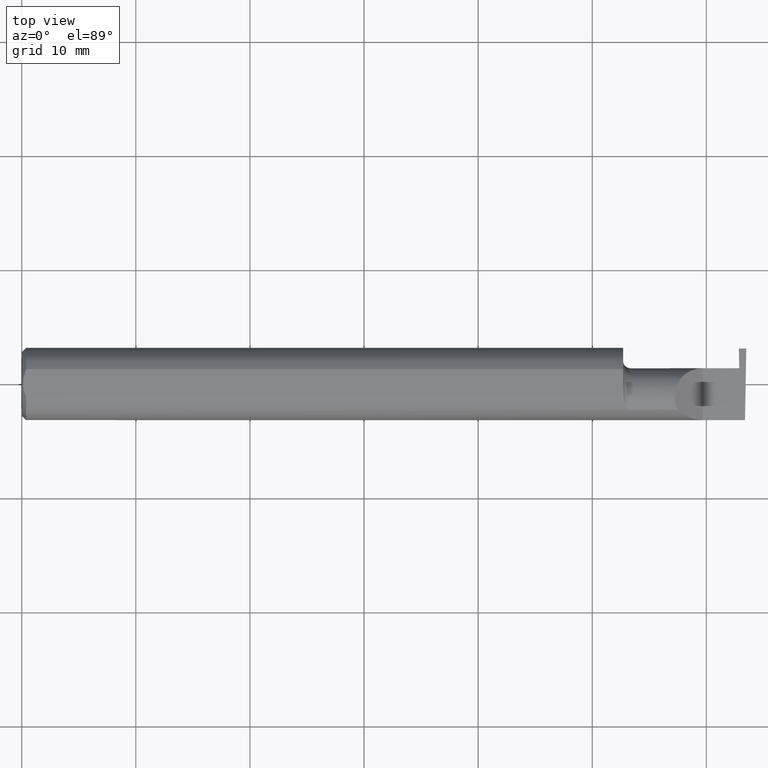
[diagram: clean part render]
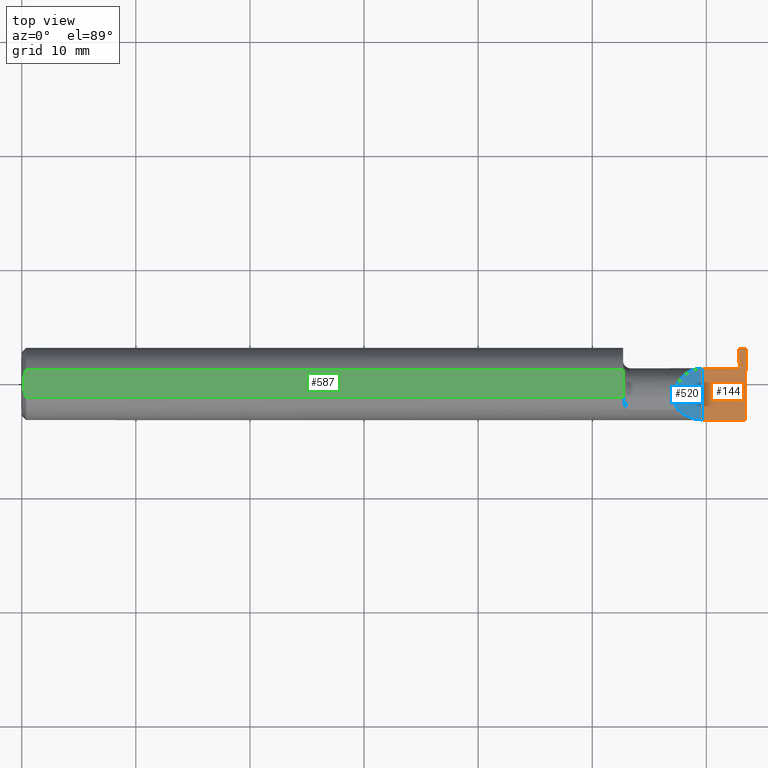
[diagram: same view with three faces highlighted in distinct colors, each labeled with its STEP entity id]
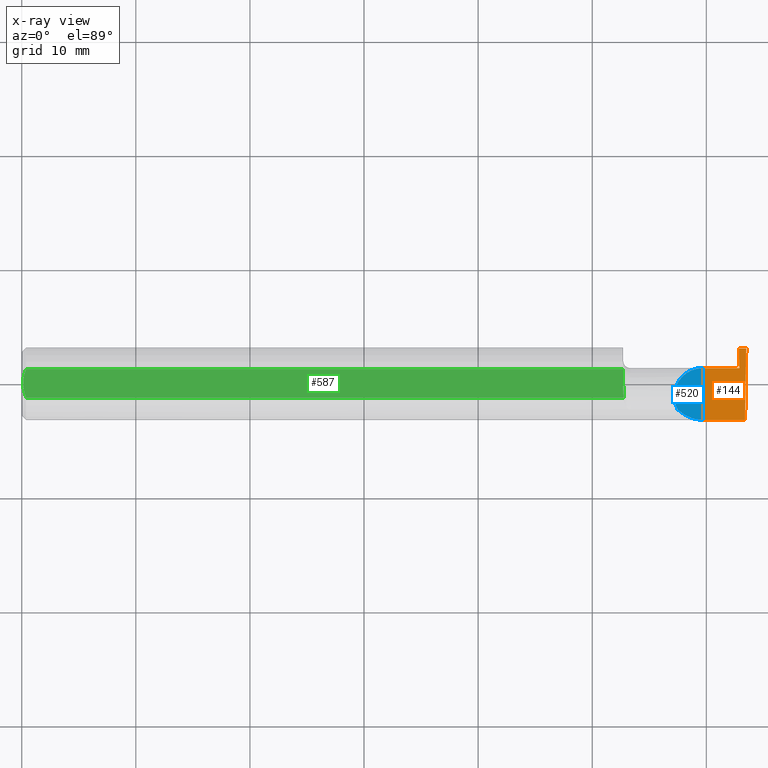
[diagram: x-ray of the same camera — body ghosted, the three highlighted faces saturated]
A machine part, top view with three faces highlighted in distinct colors.
The next image is the same camera in x-ray (body ghosted, the three faces saturated) — at least one of them is partly hidden behind the body in this view.
Their STEP definitions:

[orange] entity #144 — the highlighted planar face has unit normal (-0, 0, -1).
#3 = CARTESIAN_POINT ( 'NONE',  ( 2.500000000000000000, 0.05414999999999998981, -4.018029980387586904E-33 ) ) ;
#9 = EDGE_CURVE ( 'NONE', #714, #211, #152, .T. ) ;
#21 = CARTESIAN_POINT ( 'NONE',  ( 2.075000000000000178, 0.05414999999999998981, 5.204748896376247001E-17 ) ) ;
#61 = DIRECTION ( 'NONE',  ( -0.000000000000000000, 1.000000000000000000, -0.000000000000000000 ) ) ;
#64 = DIRECTION ( 'NONE',  ( -1.000000000000000000, 1.290958279323718807E-16, 1.224646799147352221E-16 ) ) ;
#74 = ORIENTED_EDGE ( 'NONE', *, *, #249, .F. ) ;
#85 = VECTOR ( 'NONE', #350, 39.37007874015747433 ) ;
#93 = CARTESIAN_POINT ( 'NONE',  ( 2.494380489674781209, -0.1999019447116721915, 6.881915332554697616E-19 ) ) ;
#97 = CARTESIAN_POINT ( 'NONE',  ( 3.749399456654637998E-32, -0.1248500000000000026, 3.061616997868380676E-16 ) ) ;
#115 = VECTOR ( 'NONE', #526, 39.37007874015748143 ) ;
#117 = EDGE_CURVE ( 'NONE', #639, #211, #403, .T. ) ;
#144 = ADVANCED_FACE ( 'NONE', ( #592 ), #536, .F. ) ;
#152 = LINE ( 'NONE', #524, #479 ) ;
#154 = ORIENTED_EDGE ( 'NONE', *, *, #9, .F. ) ;
#172 = EDGE_LOOP ( 'NONE', ( #575, #374, #154, #231, #571, #705, #74 ) ) ;
#176 = VERTEX_POINT ( 'NONE', #432 ) ;
#190 = CARTESIAN_POINT ( 'NONE',  ( 2.480118901204498627, -0.2003463912558332838, 2.434732400344322887E-18 ) ) ;
#198 = AXIS2_PLACEMENT_3D ( 'NONE', #295, #776, #233 ) ;
#199 = VECTOR ( 'NONE', #64, 39.37007874015748143 ) ;
#211 = VERTEX_POINT ( 'NONE', #313 ) ;
#231 = ORIENTED_EDGE ( 'NONE', *, *, #786, .T. ) ;
#233 = DIRECTION ( 'NONE',  ( -1.000000000000000000, 0.000000000000000000, 1.224646799147352221E-16 ) ) ;
#236 = CARTESIAN_POINT ( 'NONE',  ( 2.495690077103728921, -0.1248499999950964945, 8.800986592364463999E-18 ) ) ;
#249 = EDGE_CURVE ( 'NONE', #681, #176, #596, .T. ) ;
#252 = CARTESIAN_POINT ( 'NONE',  ( 2.474499999999999922, 0.1221499999999999808, -3.306546357697866753E-19 ) ) ;
#258 = VERTEX_POINT ( 'NONE', #552 ) ;
#273 = DIRECTION ( 'NONE',  ( 1.000000000000000000, 0.000000000000000000, 0.000000000000000000 ) ) ;
#295 = CARTESIAN_POINT ( 'NONE',  ( 2.500000000000000000, -0.2000000000000000111, 0.000000000000000000 ) ) ;
#313 = CARTESIAN_POINT ( 'NONE',  ( 2.500000000000000000, 0.1221500000000000224, 1.614031285319217924E-16 ) ) ;
#345 = CARTESIAN_POINT ( 'NONE',  ( 2.475684773821554607, 0.05414999999999999675, 1.856292815590049169E-17 ) ) ;
#350 = DIRECTION ( 'NONE',  ( 0.01744642479411244104, 0.9998477995484630343, -2.135106780035405654E-18 ) ) ;
#374 = ORIENTED_EDGE ( 'NONE', *, *, #117, .T. ) ;
#379 = LINE ( 'NONE', #190, #516 ) ;
#403 = LINE ( 'NONE', #93, #85 ) ;
#424 = EDGE_CURVE ( 'NONE', #176, #258, #627, .T. ) ;
#432 = CARTESIAN_POINT ( 'NONE',  ( 2.350000000000000089, 0.05414999999999988572, 1.836970198721028825E-17 ) ) ;
#479 = VECTOR ( 'NONE', #642, 39.37007874015748143 ) ;
#516 = VECTOR ( 'NONE', #563, 39.37007874015748143 ) ;
#524 = CARTESIAN_POINT ( 'NONE',  ( 2.399999999999999911, 0.1221499999999999808, -3.306546357697866753E-19 ) ) ;
#526 = DIRECTION ( 'NONE',  ( -1.000000000000000000, -0.000000000000000000, -0.000000000000000000 ) ) ;
#536 = PLANE ( 'NONE',  #198 ) ;
#552 = CARTESIAN_POINT ( 'NONE',  ( 2.474499999999999922, 0.05415000000000000369, 5.204759737726171490E-17 ) ) ;
#557 = EDGE_CURVE ( 'NONE', #639, #681, #640, .T. ) ;
#558 = VERTEX_POINT ( 'NONE', #345 ) ;
#563 = DIRECTION ( 'NONE',  ( 0.01742050049977532378, -0.9998482515673753346, -2.130797594924658018E-18 ) ) ;
#571 = ORIENTED_EDGE ( 'NONE', *, *, #689, .T. ) ;
#575 = ORIENTED_EDGE ( 'NONE', *, *, #557, .F. ) ;
#582 = VECTOR ( 'NONE', #273, 39.37007874015748143 ) ;
#592 = FACE_OUTER_BOUND ( 'NONE', #172, .T. ) ;
#596 = LINE ( 'NONE', #666, #654 ) ;
#611 = CARTESIAN_POINT ( 'NONE',  ( 2.350000000000000089, -0.1248500000000000026, 1.836970198721028825E-17 ) ) ;
#627 = LINE ( 'NONE', #21, #582 ) ;
#639 = VERTEX_POINT ( 'NONE', #236 ) ;
#640 = LINE ( 'NONE', #97, #115 ) ;
#642 = DIRECTION ( 'NONE',  ( 1.000000000000000000, -0.000000000000000000, -0.000000000000000000 ) ) ;
#654 = VECTOR ( 'NONE', #61, 39.37007874015748143 ) ;
#666 = CARTESIAN_POINT ( 'NONE',  ( 2.350000000000000089, -0.2000000000000000111, 1.836970198721028825E-17 ) ) ;
#681 = VERTEX_POINT ( 'NONE', #611 ) ;
#689 = EDGE_CURVE ( 'NONE', #558, #258, #735, .T. ) ;
#705 = ORIENTED_EDGE ( 'NONE', *, *, #424, .F. ) ;
#714 = VERTEX_POINT ( 'NONE', #252 ) ;
#735 = LINE ( 'NONE', #3, #199 ) ;
#776 = DIRECTION ( 'NONE',  ( -1.224646799147352221E-16, 0.000000000000000000, -1.000000000000000000 ) ) ;
#786 = EDGE_CURVE ( 'NONE', #714, #558, #379, .T. ) ;

[blue] entity #520 — the highlighted planar face has unit normal (-0.7071, 0, -0.7071).
#41 = AXIS2_PLACEMENT_3D ( 'NONE', #699, #223, #530 ) ;
#52 = CARTESIAN_POINT ( 'NONE',  ( 2.252000000000000668, -0.06008937020638503712, 0.09799999999999998990 ) ) ;
#61 = DIRECTION ( 'NONE',  ( -0.000000000000000000, 1.000000000000000000, -0.000000000000000000 ) ) ;
#156 = CARTESIAN_POINT ( 'NONE',  ( 2.252000000000000668, -0.04385000000000001397, 0.09800000000000000377 ) ) ;
#159 = ORIENTED_EDGE ( 'NONE', *, *, #718, .F. ) ;
#176 = VERTEX_POINT ( 'NONE', #432 ) ;
#179 =( BOUNDED_CURVE ( )  B_SPLINE_CURVE ( 3, ( #368, #657, #52, #607 ),
 .UNSPECIFIED., .F., .F. ) 
 B_SPLINE_CURVE_WITH_KNOTS ( ( 4, 4 ),
 ( 5.791092865617133434, 6.283185307179586232 ),
 .UNSPECIFIED. ) 
 CURVE ( )  GEOMETRIC_REPRESENTATION_ITEM ( )  RATIONAL_B_SPLINE_CURVE ( ( 1.000000000000000000, 0.9799220177372784946, 0.9799220177372784946, 1.000000000000000000 ) ) 
 REPRESENTATION_ITEM ( '' )  );
#204 = CARTESIAN_POINT ( 'NONE',  ( 2.263628075281542529, -0.09015216647662421812, 0.08637192471845822617 ) ) ;
#207 = ORIENTED_EDGE ( 'NONE', *, *, #597, .F. ) ;
#223 = DIRECTION ( 'NONE',  ( -0.7071067811865492381, 0.000000000000000000, -0.7071067811865459074 ) ) ;
#226 = EDGE_LOOP ( 'NONE', ( #207, #159, #634, #663 ) ) ;
#249 = EDGE_CURVE ( 'NONE', #681, #176, #596, .T. ) ;
#294 =( BOUNDED_CURVE ( )  B_SPLINE_CURVE ( 3, ( #619, #385, #622, #204 ),
 .UNSPECIFIED., .F., .T. ) 
 B_SPLINE_CURVE_WITH_KNOTS ( ( 4, 4 ),
 ( 4.712388980384690562, 5.476375539154175520 ),
 .UNSPECIFIED. ) 
 CURVE ( )  GEOMETRIC_REPRESENTATION_ITEM ( )  RATIONAL_B_SPLINE_CURVE ( ( 1.000000000000000000, 0.9519489620492029847, 0.9519489620492029847, 1.000000000000000000 ) ) 
 REPRESENTATION_ITEM ( '' )  );
#325 =( BOUNDED_CURVE ( )  B_SPLINE_CURVE ( 3, ( #156, #349, #401, #407 ),
 .UNSPECIFIED., .F., .T. ) 
 B_SPLINE_CURVE_WITH_KNOTS ( ( 4, 4 ),
 ( 0.000000000000000000, 1.570796326794896558 ),
 .UNSPECIFIED. ) 
 CURVE ( )  GEOMETRIC_REPRESENTATION_ITEM ( )  RATIONAL_B_SPLINE_CURVE ( ( 1.000000000000000000, 0.8047378541243649375, 0.8047378541243649375, 1.000000000000000000 ) ) 
 REPRESENTATION_ITEM ( '' )  );
#349 = CARTESIAN_POINT ( 'NONE',  ( 2.252000000000000668, 0.01355707088743670317, 0.09799999999999996214 ) ) ;
#361 = CARTESIAN_POINT ( 'NONE',  ( 2.252000000000000668, -0.04385000000000001397, 0.09800000000000000377 ) ) ;
#368 = CARTESIAN_POINT ( 'NONE',  ( 2.263628075281542529, -0.09015216647662421812, 0.08637192471845822617 ) ) ;
#385 = CARTESIAN_POINT ( 'NONE',  ( 2.317406910344188997, -0.1248500000000000304, 0.03259308965581166062 ) ) ;
#401 = CARTESIAN_POINT ( 'NONE',  ( 2.292592929112563738, 0.05415000000000004532, 0.05740707088743669112 ) ) ;
#407 = CARTESIAN_POINT ( 'NONE',  ( 2.350000000000000089, 0.05414999999999988572, 1.836970198721028825E-17 ) ) ;
#432 = CARTESIAN_POINT ( 'NONE',  ( 2.350000000000000089, 0.05414999999999988572, 1.836970198721028825E-17 ) ) ;
#435 = CARTESIAN_POINT ( 'NONE',  ( 2.263628075281542529, -0.09015216647662421812, 0.08637192471845822617 ) ) ;
#460 = EDGE_CURVE ( 'NONE', #651, #176, #325, .T. ) ;
#461 = FACE_OUTER_BOUND ( 'NONE', #226, .T. ) ;
#520 = ADVANCED_FACE ( 'NONE', ( #461 ), #649, .F. ) ;
#530 = DIRECTION ( 'NONE',  ( -0.7071067811865459074, 0.000000000000000000, 0.7071067811865492381 ) ) ;
#596 = LINE ( 'NONE', #666, #654 ) ;
#597 = EDGE_CURVE ( 'NONE', #777, #651, #179, .T. ) ;
#607 = CARTESIAN_POINT ( 'NONE',  ( 2.252000000000000668, -0.04385000000000001397, 0.09800000000000000377 ) ) ;
#611 = CARTESIAN_POINT ( 'NONE',  ( 2.350000000000000089, -0.1248500000000000026, 1.836970198721028825E-17 ) ) ;
#619 = CARTESIAN_POINT ( 'NONE',  ( 2.350000000000000089, -0.1248500000000000026, 1.836970198721028825E-17 ) ) ;
#622 = CARTESIAN_POINT ( 'NONE',  ( 2.287163018370355072, -0.1127002472623169216, 0.06283698162964553025 ) ) ;
#634 = ORIENTED_EDGE ( 'NONE', *, *, #249, .T. ) ;
#649 = PLANE ( 'NONE',  #41 ) ;
#651 = VERTEX_POINT ( 'NONE', #361 ) ;
#654 = VECTOR ( 'NONE', #61, 39.37007874015748143 ) ;
#657 = CARTESIAN_POINT ( 'NONE',  ( 2.255955442396118560, -0.07583965973232772995, 0.09404455760388213958 ) ) ;
#663 = ORIENTED_EDGE ( 'NONE', *, *, #460, .F. ) ;
#666 = CARTESIAN_POINT ( 'NONE',  ( 2.350000000000000089, -0.2000000000000000111, 1.836970198721028825E-17 ) ) ;
#681 = VERTEX_POINT ( 'NONE', #611 ) ;
#699 = CARTESIAN_POINT ( 'NONE',  ( 2.350000000000000089, -0.2000000000000000111, 1.836970198721028825E-17 ) ) ;
#718 = EDGE_CURVE ( 'NONE', #681, #777, #294, .T. ) ;
#777 = VERTEX_POINT ( 'NONE', #435 ) ;

[green] entity #587 — the highlighted planar face has unit normal (0, -0, 1).
#11 = ORIENTED_EDGE ( 'NONE', *, *, #628, .T. ) ;
#34 = CARTESIAN_POINT ( 'NONE',  ( 2.075000000000000178, -0.1248500000000000165, 0.1148500000000000076 ) ) ;
#45 = CARTESIAN_POINT ( 'NONE',  ( 0.005932194444709711773, -0.01671525318617311101, 0.1148500000000000215 ) ) ;
#46 = B_SPLINE_CURVE_WITH_KNOTS ( 'NONE', 3,
 ( #241, #482, #45, #164, #725, #538 ),
 .UNSPECIFIED., .F., .F.,
 ( 4, 2, 4 ),
 ( 0.003658435455108828907, 0.004289327297787135992, 0.004920219140465443078 ),
 .UNSPECIFIED. ) ;
#47 = CARTESIAN_POINT ( 'NONE',  ( 2.076365755776839350, -0.04470142088163401445, 0.1148500000000000076 ) ) ;
#48 = VERTEX_POINT ( 'NONE', #287 ) ;
#72 = B_SPLINE_CURVE_WITH_KNOTS ( 'NONE', 3,
 ( #278, #591, #765, #636, #751, #577 ),
 .UNSPECIFIED., .F., .F.,
 ( 4, 2, 4 ),
 ( 0.009485158816280120364, 0.01004274199597734486, 0.01060032517567456936 ),
 .UNSPECIFIED. ) ;
#98 = CARTESIAN_POINT ( 'NONE',  ( 2.076326891871145719, -0.04895916665872582924, 0.1148500000000000076 ) ) ;
#102 = CARTESIAN_POINT ( 'NONE',  ( 0.01499999999999987454, 0.04895916665957496944, 0.1148500000000000076 ) ) ;
#114 = CARTESIAN_POINT ( 'NONE',  ( 2.076326891871145719, -0.04895916665872582924, 0.1148500000000000076 ) ) ;
#118 = CARTESIAN_POINT ( 'NONE',  ( 0.000000000000000000, 0.04895916665957456698, 0.1148500000000000076 ) ) ;
#129 = VECTOR ( 'NONE', #420, 39.37007874015748143 ) ;
#130 = EDGE_LOOP ( 'NONE', ( #724, #421, #537, #749, #135, #11, #185 ) ) ;
#135 = ORIENTED_EDGE ( 'NONE', *, *, #670, .T. ) ;
#140 = VERTEX_POINT ( 'NONE', #98 ) ;
#164 = CARTESIAN_POINT ( 'NONE',  ( 0.009415874254822409126, -0.03313958207962818675, 0.1148500000000000076 ) ) ;
#166 = VERTEX_POINT ( 'NONE', #254 ) ;
#185 = ORIENTED_EDGE ( 'NONE', *, *, #631, .T. ) ;
#202 = B_SPLINE_CURVE_WITH_KNOTS ( 'NONE', 3,
 ( #114, #779, #604, #248, #47, #370 ),
 .UNSPECIFIED., .F., .F.,
 ( 4, 2, 4 ),
 ( 0.009355882855483714511, 0.009420520835881917437, 0.009485158816280120364 ),
 .UNSPECIFIED. ) ;
#213 = VECTOR ( 'NONE', #397, 39.37007874015748143 ) ;
#241 = CARTESIAN_POINT ( 'NONE',  ( 0.004999999999999990563, 1.454187663965904829E-17, 0.1148500000000000076 ) ) ;
#248 = CARTESIAN_POINT ( 'NONE',  ( 2.076362484150212850, -0.04555293709188857482, 0.1148500000000000076 ) ) ;
#254 = CARTESIAN_POINT ( 'NONE',  ( 2.075000000000000178, 0.04895916665957496944, 0.1148500000000000076 ) ) ;
#262 = EDGE_CURVE ( 'NONE', #140, #697, #202, .T. ) ;
#271 = VERTEX_POINT ( 'NONE', #416 ) ;
#275 = EDGE_CURVE ( 'NONE', #481, #140, #305, .T. ) ;
#278 = CARTESIAN_POINT ( 'NONE',  ( 2.076365755776839794, -0.04385000000000001397, 0.1148500000000000076 ) ) ;
#287 = CARTESIAN_POINT ( 'NONE',  ( 2.075000000000000622, 0.0001781444078671173391, 0.1148500000000000076 ) ) ;
#303 = DIRECTION ( 'NONE',  ( 1.000000000000000000, 0.000000000000000000, -0.000000000000000000 ) ) ;
#304 = B_SPLINE_CURVE_WITH_KNOTS ( 'NONE', 3,
 ( #102, #728, #489, #661, #595, #715 ),
 .UNSPECIFIED., .F., .F.,
 ( 4, 2, 4 ),
 ( 0.002396733445051246140, 0.003027584450080037307, 0.003658435455108828907 ),
 .UNSPECIFIED. ) ;
#305 = LINE ( 'NONE', #600, #129 ) ;
#309 = VECTOR ( 'NONE', #372, 39.37007874015748143 ) ;
#352 = CARTESIAN_POINT ( 'NONE',  ( 0.01499999999999999944, -0.04895916665957456698, 0.1148500000000000076 ) ) ;
#358 = FACE_OUTER_BOUND ( 'NONE', #130, .T. ) ;
#370 = CARTESIAN_POINT ( 'NONE',  ( 2.076365755776839794, -0.04385000000000001397, 0.1148500000000000076 ) ) ;
#372 = DIRECTION ( 'NONE',  ( -1.000000000000000000, -0.000000000000000000, -0.000000000000000000 ) ) ;
#397 = DIRECTION ( 'NONE',  ( -0.000000000000000000, 1.000000000000000000, 0.000000000000000000 ) ) ;
#416 = CARTESIAN_POINT ( 'NONE',  ( 0.01499999999999987454, 0.04895916665957496944, 0.1148500000000000076 ) ) ;
#420 = DIRECTION ( 'NONE',  ( 1.000000000000000000, 0.000000000000000000, 0.000000000000000000 ) ) ;
#421 = ORIENTED_EDGE ( 'NONE', *, *, #262, .T. ) ;
#470 = LINE ( 'NONE', #34, #213 ) ;
#481 = VERTEX_POINT ( 'NONE', #352 ) ;
#482 = CARTESIAN_POINT ( 'NONE',  ( 0.004999999999999964542, -0.008410771716546833199, 0.1148500000000000215 ) ) ;
#489 = CARTESIAN_POINT ( 'NONE',  ( 0.009410502401328750890, 0.03310661131402438395, 0.1148499999999999938 ) ) ;
#497 = EDGE_CURVE ( 'NONE', #48, #166, #470, .T. ) ;
#498 = EDGE_CURVE ( 'NONE', #697, #48, #72, .T. ) ;
#537 = ORIENTED_EDGE ( 'NONE', *, *, #498, .T. ) ;
#538 = CARTESIAN_POINT ( 'NONE',  ( 0.01499999999999999944, -0.04895916665957456698, 0.1148500000000000076 ) ) ;
#547 = AXIS2_PLACEMENT_3D ( 'NONE', #665, #721, #303 ) ;
#560 = CARTESIAN_POINT ( 'NONE',  ( 0.004999999999999990563, 1.454187663965904829E-17, 0.1148500000000000076 ) ) ;
#577 = CARTESIAN_POINT ( 'NONE',  ( 2.075000000000000622, 0.0001781444078671173391, 0.1148500000000000076 ) ) ;
#587 = ADVANCED_FACE ( 'NONE', ( #358 ), #775, .T. ) ;
#591 = CARTESIAN_POINT ( 'NONE',  ( 2.076365755776839350, -0.03650543323727815925, 0.1148500000000000215 ) ) ;
#595 = CARTESIAN_POINT ( 'NONE',  ( 0.004999999999999962808, 0.008410227287019804779, 0.1148500000000000076 ) ) ;
#600 = CARTESIAN_POINT ( 'NONE',  ( 0.000000000000000000, -0.04895916665957456698, 0.1148500000000000076 ) ) ;
#604 = CARTESIAN_POINT ( 'NONE',  ( 2.076349474474287859, -0.04725615793095022665, 0.1148499999999999938 ) ) ;
#615 = CARTESIAN_POINT ( 'NONE',  ( 2.076365755776839794, -0.04385000000000001397, 0.1148500000000000076 ) ) ;
#628 = EDGE_CURVE ( 'NONE', #271, #740, #304, .T. ) ;
#631 = EDGE_CURVE ( 'NONE', #740, #481, #46, .T. ) ;
#636 = CARTESIAN_POINT ( 'NONE',  ( 2.075400391910593445, -0.01449986171080063120, 0.1148500000000000076 ) ) ;
#661 = CARTESIAN_POINT ( 'NONE',  ( 0.005947935873631229539, 0.01679708999422689988, 0.1148500000000000076 ) ) ;
#665 = CARTESIAN_POINT ( 'NONE',  ( 2.500000000000000000, -0.1248500000000000165, 0.1148500000000000076 ) ) ;
#670 = EDGE_CURVE ( 'NONE', #166, #271, #673, .T. ) ;
#673 = LINE ( 'NONE', #118, #309 ) ;
#697 = VERTEX_POINT ( 'NONE', #615 ) ;
#715 = CARTESIAN_POINT ( 'NONE',  ( 0.004999999999999990563, 1.454187663965904829E-17, 0.1148500000000000076 ) ) ;
#721 = DIRECTION ( 'NONE',  ( 0.000000000000000000, -0.000000000000000000, 1.000000000000000000 ) ) ;
#724 = ORIENTED_EDGE ( 'NONE', *, *, #275, .T. ) ;
#725 = CARTESIAN_POINT ( 'NONE',  ( 0.01195732443765547617, -0.04120008761723503721, 0.1148499999999999938 ) ) ;
#728 = CARTESIAN_POINT ( 'NONE',  ( 0.01193974418109658951, 0.04115525648180412555, 0.1148500000000000215 ) ) ;
#740 = VERTEX_POINT ( 'NONE', #560 ) ;
#749 = ORIENTED_EDGE ( 'NONE', *, *, #497, .T. ) ;
#751 = CARTESIAN_POINT ( 'NONE',  ( 2.075000000000000178, -0.007185469346090044528, 0.1148500000000000076 ) ) ;
#765 = CARTESIAN_POINT ( 'NONE',  ( 2.076090261609497389, -0.02916889382056604002, 0.1148499999999999938 ) ) ;
#775 = PLANE ( 'NONE',  #547 ) ;
#779 = CARTESIAN_POINT ( 'NONE',  ( 2.076339737573316579, -0.04810771292169582075, 0.1148500000000000215 ) ) ;